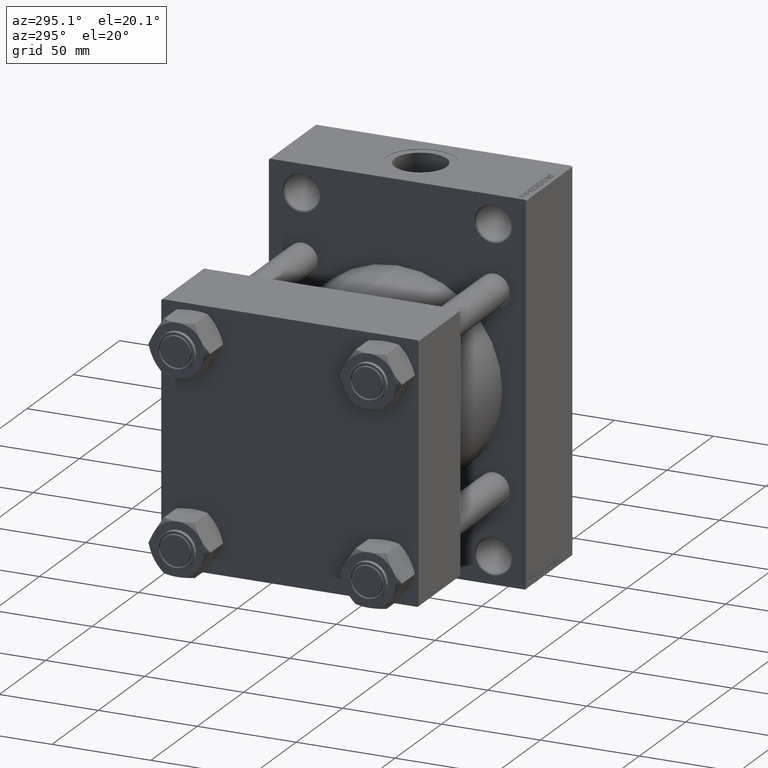
[diagram: clean part render]
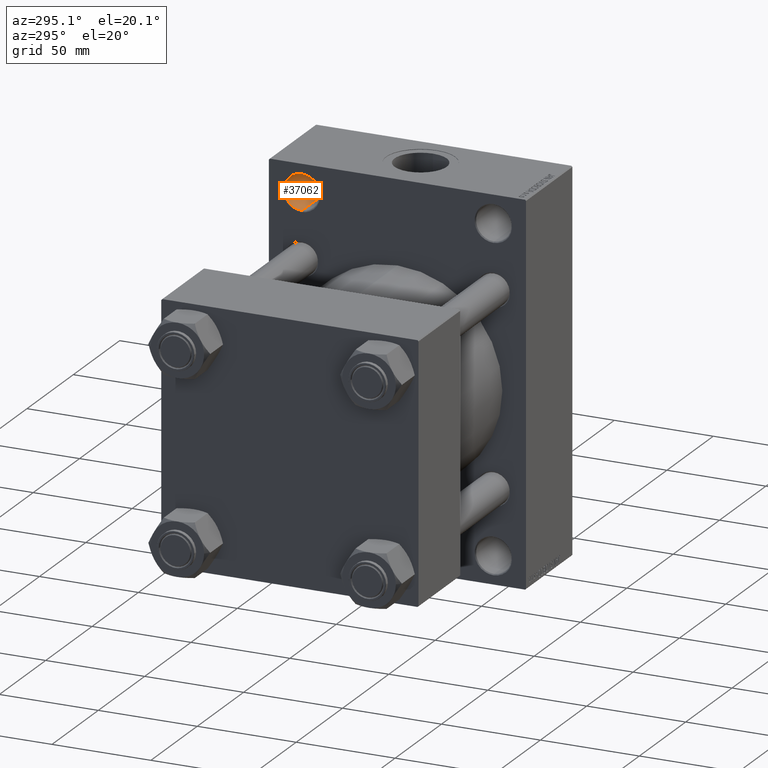
[diagram: same view with one face highlighted and labeled with its STEP entity id]
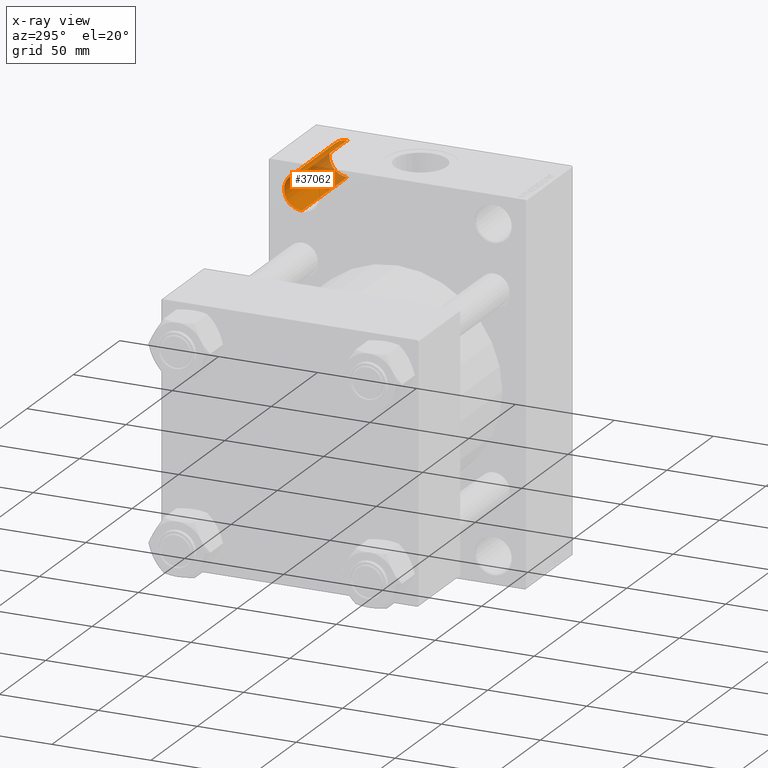
[diagram: x-ray of the same camera — body ghosted, the highlighted face saturated]
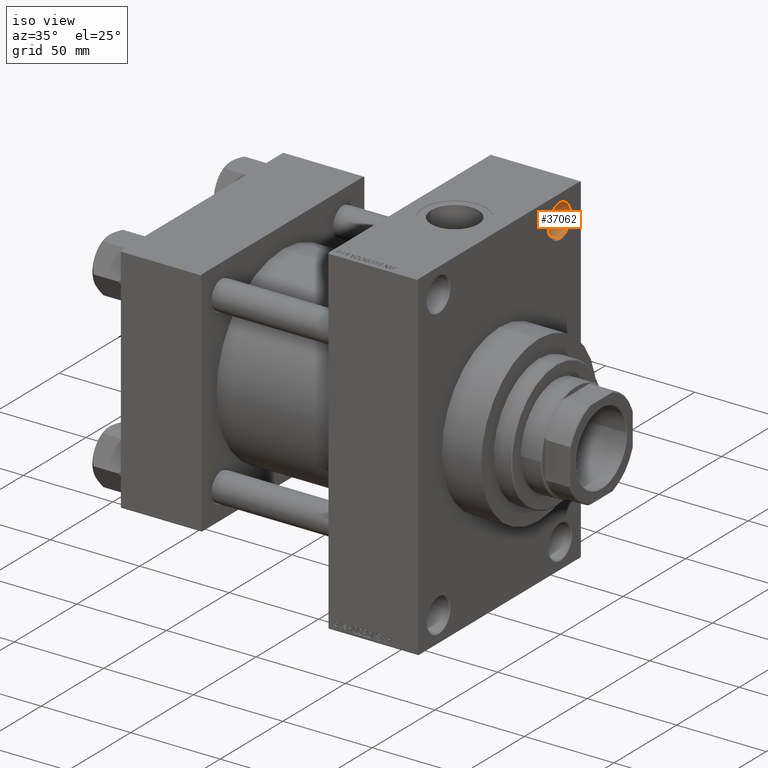
[diagram: same view with one face highlighted and labeled with its STEP entity id]
A machine part, auxiliary view. The second image highlights one B-rep face of the part: STEP entity #37062.
The next image is the same camera in x-ray: the body ghosted, the highlighted face saturated — about 34% of this face is hidden behind the body in this view.
A second angle (iso view) of the same face is appended — the face is thin or edge-on in the first view.
In plain terms, the highlighted cylindrical surface (edge-blend (fillet) strip) has radius 9 mm, axis along (1, 0, 0).
Its self-contained STEP definition (entity closure, byte-faithful):
#499 = CARTESIAN_POINT ( 'NONE',  ( 165.4999999999998863, 48.50000000000000711, 90.00000000000000000 ) ) ;
#798 = AXIS2_PLACEMENT_3D ( 'NONE', #3161, #20766, #6769 ) ;
#1669 = CARTESIAN_POINT ( 'NONE',  ( 165.4999999999998863, 48.50000000000000711, 72.00000000000001421 ) ) ;
#2196 = ORIENTED_EDGE ( 'NONE', *, *, #8732, .T. ) ;
#3161 = CARTESIAN_POINT ( 'NONE',  ( 165.4999999999998863, 48.50000000000000711, 81.00000000000000000 ) ) ;
#3884 = CARTESIAN_POINT ( 'NONE',  ( 90.54415587728428250, 48.50000000000000711, 72.00000000000001421 ) ) ;
#3901 = LINE ( 'NONE', #4362, #30470 ) ;
#4362 = CARTESIAN_POINT ( 'NONE',  ( 90.54415587728428250, 48.50000000000000711, 90.00000000000000000 ) ) ;
#4432 = DIRECTION ( 'NONE',  ( 0.000000000000000000, 0.000000000000000000, 1.000000000000000000 ) ) ;
#6769 = DIRECTION ( 'NONE',  ( 0.000000000000000000, 0.000000000000000000, 1.000000000000000000 ) ) ;
#6951 = AXIS2_PLACEMENT_3D ( 'NONE', #26395, #41121, #4432 ) ;
#6977 = VERTEX_POINT ( 'NONE', #40262 ) ;
#8732 = EDGE_CURVE ( 'NONE', #39850, #34698, #41647, .T. ) ;
#8986 = EDGE_LOOP ( 'NONE', ( #38587, #43783, #17472, #2196 ) ) ;
#11109 = LINE ( 'NONE', #3884, #34945 ) ;
#16240 = FACE_OUTER_BOUND ( 'NONE', #8986, .T. ) ;
#17472 = ORIENTED_EDGE ( 'NONE', *, *, #21232, .T. ) ;
#18600 = DIRECTION ( 'NONE',  ( 1.000000000000000000, -0.000000000000000000, -0.000000000000000000 ) ) ;
#20098 = DIRECTION ( 'NONE',  ( 1.000000000000000000, -0.000000000000000000, -0.000000000000000000 ) ) ;
#20766 = DIRECTION ( 'NONE',  ( 1.000000000000000000, 0.000000000000000000, 0.000000000000000000 ) ) ;
#20781 = CIRCLE ( 'NONE', #6951, 8.999999999999994671 ) ;
#21232 = EDGE_CURVE ( 'NONE', #22935, #39850, #11109, .T. ) ;
#22935 = VERTEX_POINT ( 'NONE', #26548 ) ;
#23719 = CARTESIAN_POINT ( 'NONE',  ( 90.54415587728428250, 48.50000000000000711, 81.00000000000000000 ) ) ;
#26395 = CARTESIAN_POINT ( 'NONE',  ( 116.5000000000000853, 48.50000000000000711, 81.00000000000000000 ) ) ;
#26548 = CARTESIAN_POINT ( 'NONE',  ( 116.5000000000000853, 48.50000000000000711, 72.00000000000001421 ) ) ;
#26841 = AXIS2_PLACEMENT_3D ( 'NONE', #23719, #20098, #42070 ) ;
#26859 = CYLINDRICAL_SURFACE ( 'NONE', #26841, 8.999999999999994671 ) ;
#28896 = EDGE_CURVE ( 'NONE', #6977, #34698, #3901, .T. ) ;
#30470 = VECTOR ( 'NONE', #37185, 1000.000000000000000 ) ;
#34698 = VERTEX_POINT ( 'NONE', #499 ) ;
#34945 = VECTOR ( 'NONE', #18600, 1000.000000000000000 ) ;
#37062 = ADVANCED_FACE ( 'NONE', ( #16240 ), #26859, .F. ) ;
#37185 = DIRECTION ( 'NONE',  ( 1.000000000000000000, -0.000000000000000000, -0.000000000000000000 ) ) ;
#38587 = ORIENTED_EDGE ( 'NONE', *, *, #28896, .F. ) ;
#39850 = VERTEX_POINT ( 'NONE', #1669 ) ;
#40262 = CARTESIAN_POINT ( 'NONE',  ( 116.5000000000000853, 48.50000000000000711, 90.00000000000000000 ) ) ;
#41121 = DIRECTION ( 'NONE',  ( -1.000000000000000000, -0.000000000000000000, -0.000000000000000000 ) ) ;
#41647 = CIRCLE ( 'NONE', #798, 8.999999999999994671 ) ;
#42070 = DIRECTION ( 'NONE',  ( 0.000000000000000000, 0.000000000000000000, -1.000000000000000000 ) ) ;
#42807 = EDGE_CURVE ( 'NONE', #6977, #22935, #20781, .T. ) ;
#43783 = ORIENTED_EDGE ( 'NONE', *, *, #42807, .T. ) ;